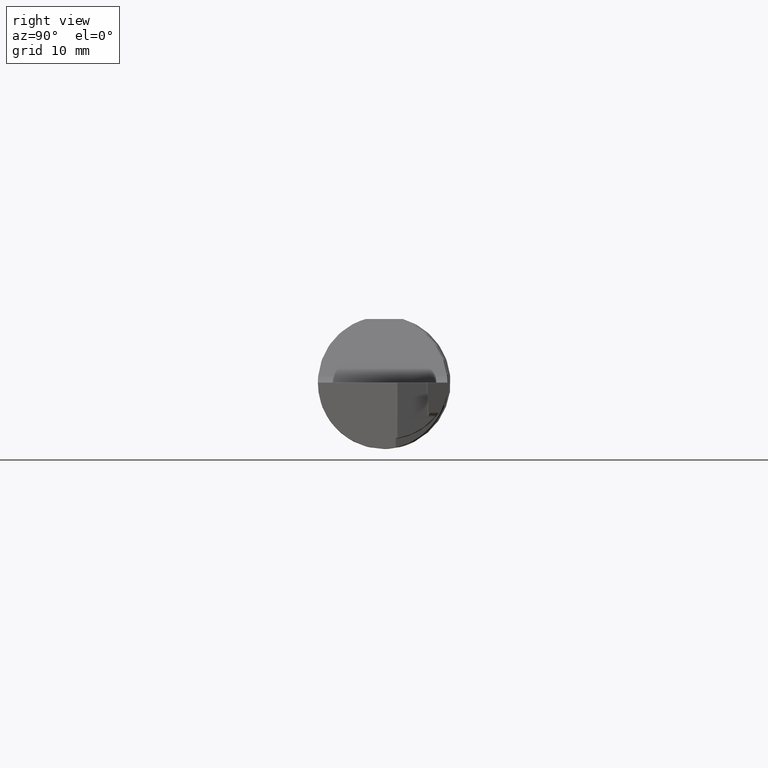
[diagram: clean part render]
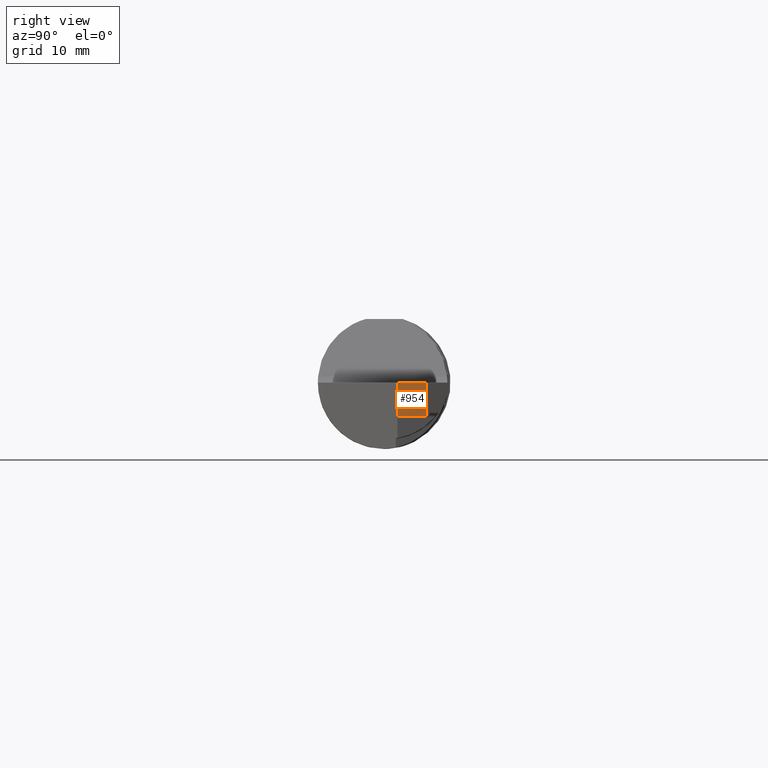
[diagram: same view with one face highlighted and labeled with its STEP entity id]
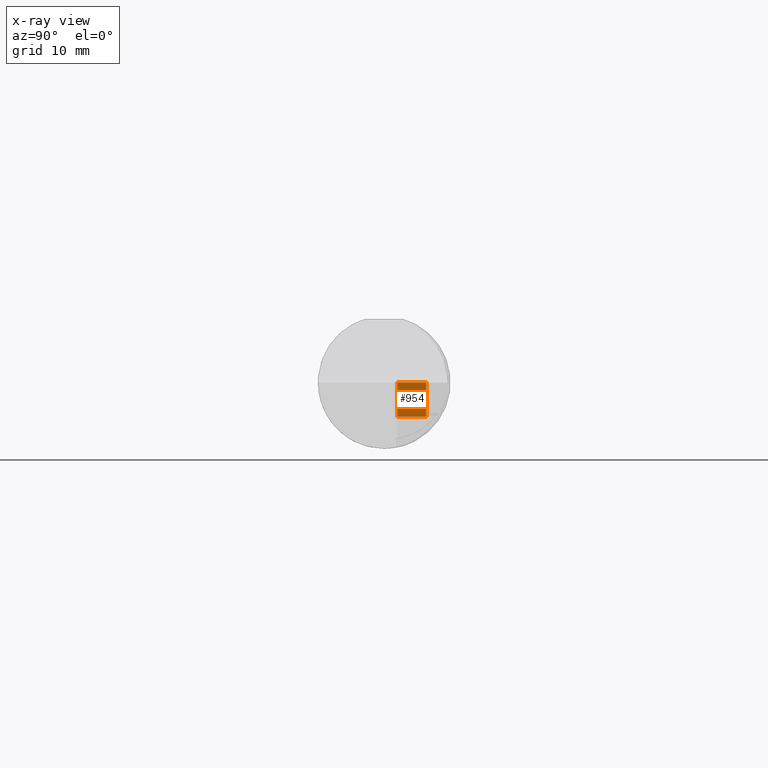
[diagram: x-ray of the same camera — body ghosted, the highlighted face saturated]
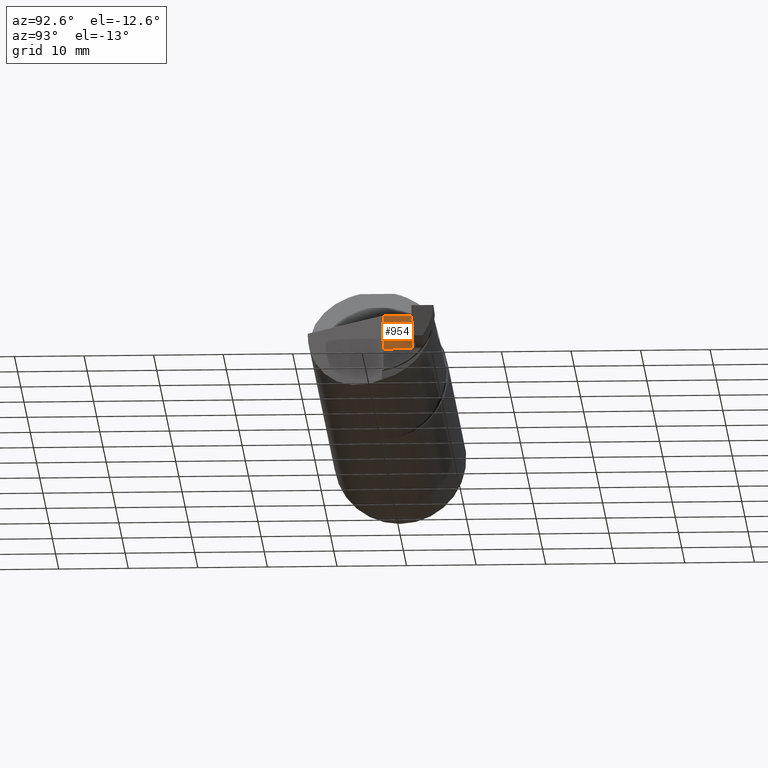
[diagram: same view with one face highlighted and labeled with its STEP entity id]
A machine part, right view. The second image highlights one B-rep face of the part: STEP entity #954.
The next image is the same camera in x-ray: the body ghosted, the highlighted face saturated — about 0% of this face is hidden behind the body in this view.
A second angle (auxiliary view) of the same face is appended — the face is thin or edge-on in the first view.
In plain terms, the highlighted planar face has unit normal (-1, 0, -0).
Its self-contained STEP definition (entity closure, byte-faithful):
#22 = CARTESIAN_POINT ( 'NONE',  ( 3.734999999999999876, 0.2382987566360348086, 0.000000000000000000 ) ) ;
#60 = ORIENTED_EDGE ( 'NONE', *, *, #346, .F. ) ;
#81 = EDGE_LOOP ( 'NONE', ( #60, #898, #923, #856 ) ) ;
#94 = CARTESIAN_POINT ( 'NONE',  ( 3.734999999999999876, 0.2382987566360348086, -0.3748500000000000165 ) ) ;
#146 = VECTOR ( 'NONE', #168, 39.37007874015748143 ) ;
#161 = VECTOR ( 'NONE', #595, 39.37007874015748143 ) ;
#168 = DIRECTION ( 'NONE',  ( -0.000000000000000000, -0.000000000000000000, 1.000000000000000000 ) ) ;
#176 = LINE ( 'NONE', #490, #461 ) ;
#179 = VERTEX_POINT ( 'NONE', #620 ) ;
#206 = CARTESIAN_POINT ( 'NONE',  ( 3.734999999999999876, 0.07514999999999995295, -0.1927661692096327151 ) ) ;
#217 = LINE ( 'NONE', #752, #651 ) ;
#233 = EDGE_CURVE ( 'NONE', #260, #613, #515, .T. ) ;
#260 = VERTEX_POINT ( 'NONE', #206 ) ;
#274 = CARTESIAN_POINT ( 'NONE',  ( 3.734999999999999876, 0.07514999999999995295, -0.3748500000000000165 ) ) ;
#277 = FACE_OUTER_BOUND ( 'NONE', #81, .T. ) ;
#346 = EDGE_CURVE ( 'NONE', #179, #260, #176, .T. ) ;
#452 = DIRECTION ( 'NONE',  ( 0.000000000000000000, 1.000000000000000000, 0.000000000000000000 ) ) ;
#461 = VECTOR ( 'NONE', #882, 39.37007874015748143 ) ;
#490 = CARTESIAN_POINT ( 'NONE',  ( 3.734999999999999876, 0.3748500000000000165, -0.1927661692096327151 ) ) ;
#491 = EDGE_CURVE ( 'NONE', #613, #654, #217, .T. ) ;
#515 = LINE ( 'NONE', #274, #161 ) ;
#595 = DIRECTION ( 'NONE',  ( -0.000000000000000000, -0.000000000000000000, 1.000000000000000000 ) ) ;
#613 = VERTEX_POINT ( 'NONE', #644 ) ;
#620 = CARTESIAN_POINT ( 'NONE',  ( 3.734999999999999432, 0.2382987566360348086, -0.1927661692092621226 ) ) ;
#644 = CARTESIAN_POINT ( 'NONE',  ( 3.734999999999999876, 0.07514999999999995295, 0.000000000000000000 ) ) ;
#648 = DIRECTION ( 'NONE',  ( -0.000000000000000000, 0.000000000000000000, 1.000000000000000000 ) ) ;
#651 = VECTOR ( 'NONE', #452, 39.37007874015748143 ) ;
#653 = DIRECTION ( 'NONE',  ( -1.000000000000000000, 0.000000000000000000, -0.000000000000000000 ) ) ;
#654 = VERTEX_POINT ( 'NONE', #22 ) ;
#710 = EDGE_CURVE ( 'NONE', #179, #654, #937, .T. ) ;
#723 = PLANE ( 'NONE',  #904 ) ;
#752 = CARTESIAN_POINT ( 'NONE',  ( 3.734999999999999876, -0.4748500000000000498, 0.000000000000000000 ) ) ;
#806 = CARTESIAN_POINT ( 'NONE',  ( 3.734999999999999876, 0.2382987566360348086, -0.3748500000000000165 ) ) ;
#856 = ORIENTED_EDGE ( 'NONE', *, *, #233, .F. ) ;
#882 = DIRECTION ( 'NONE',  ( 0.000000000000000000, -1.000000000000000000, 0.000000000000000000 ) ) ;
#898 = ORIENTED_EDGE ( 'NONE', *, *, #710, .T. ) ;
#904 = AXIS2_PLACEMENT_3D ( 'NONE', #806, #653, #648 ) ;
#923 = ORIENTED_EDGE ( 'NONE', *, *, #491, .F. ) ;
#937 = LINE ( 'NONE', #94, #146 ) ;
#954 = ADVANCED_FACE ( 'NONE', ( #277 ), #723, .F. ) ;